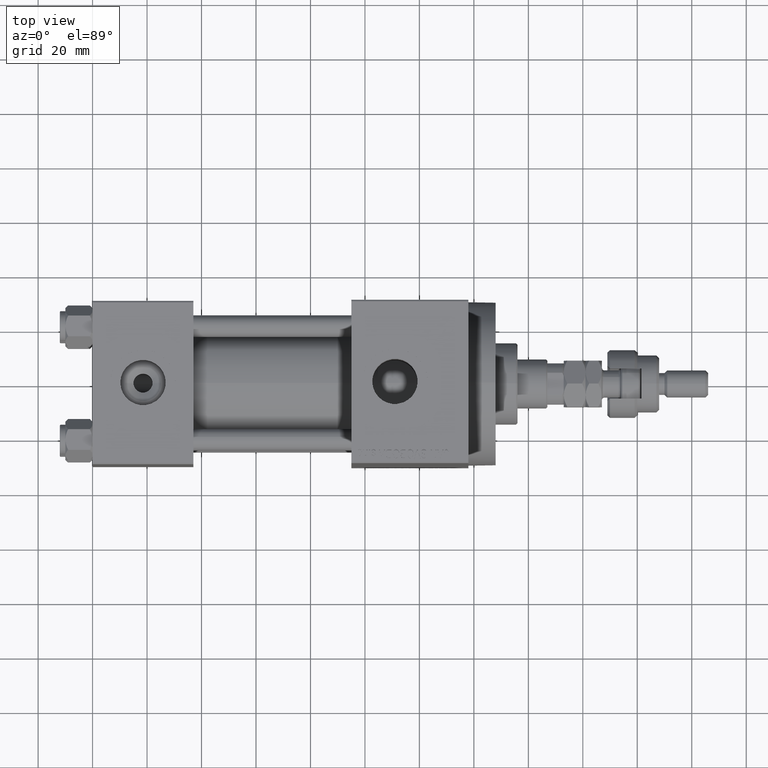
[diagram: clean part render]
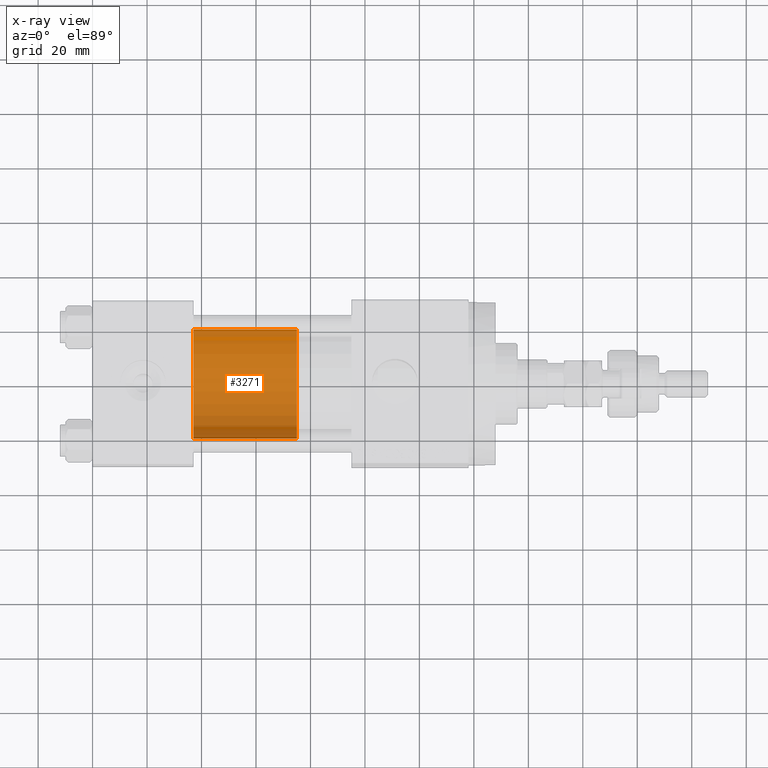
[diagram: x-ray — body ghosted, one internal face saturated and labeled with its STEP entity id]
A machine part, top view, then the same camera in x-ray: the body is ghosted and one INTERNAL B-rep face — a face not visible from any outside direction — is saturated and labeled: STEP entity #3271.
In plain terms, the highlighted cylindrical surface (partial cylindrical patch) has radius 20 mm, axis along (-1, 0, 0).
Its self-contained STEP definition (entity closure, byte-faithful):
#185 = VECTOR ( 'NONE', #47892, 1000.000000000000000 ) ;
#1469 = DIRECTION ( 'NONE',  ( -1.000000000000000000, 0.000000000000000000, 0.000000000000000000 ) ) ;
#1838 = CARTESIAN_POINT ( 'NONE',  ( -20.00000000000000000, 0.000000000000000000, 38.00000000000000000 ) ) ;
#3271 = ADVANCED_FACE ( 'NONE', ( #47256 ), #8543, .T. ) ;
#4223 = AXIS2_PLACEMENT_3D ( 'NONE', #45536, #25548, #30082 ) ;
#6424 = DIRECTION ( 'NONE',  ( -0.000000000000000000, -0.000000000000000000, -1.000000000000000000 ) ) ;
#6730 = CIRCLE ( 'NONE', #32597, 20.00000000000000000 ) ;
#7642 = EDGE_CURVE ( 'NONE', #39874, #18094, #6730, .T. ) ;
#8543 = CYLINDRICAL_SURFACE ( 'NONE', #42871, 20.00000000000000000 ) ;
#9425 = ORIENTED_EDGE ( 'NONE', *, *, #7642, .F. ) ;
#16143 = CARTESIAN_POINT ( 'NONE',  ( -20.00000000000000000, 0.000000000000000000, 0.000000000000000000 ) ) ;
#18094 = VERTEX_POINT ( 'NONE', #18307 ) ;
#18307 = CARTESIAN_POINT ( 'NONE',  ( -20.00000000000000000, 0.000000000000000000, 38.00000000000000000 ) ) ;
#20165 = CARTESIAN_POINT ( 'NONE',  ( 0.000000000000000000, 0.000000000000000000, 38.00000000000000000 ) ) ;
#22099 = LINE ( 'NONE', #38034, #23437 ) ;
#22209 = EDGE_CURVE ( 'NONE', #39874, #43421, #22099, .T. ) ;
#23082 = DIRECTION ( 'NONE',  ( 0.000000000000000000, 0.000000000000000000, 1.000000000000000000 ) ) ;
#23437 = VECTOR ( 'NONE', #6424, 1000.000000000000000 ) ;
#25548 = DIRECTION ( 'NONE',  ( 0.000000000000000000, 0.000000000000000000, 1.000000000000000000 ) ) ;
#26127 = EDGE_CURVE ( 'NONE', #18094, #40064, #32447, .T. ) ;
#27307 = EDGE_CURVE ( 'NONE', #43421, #40064, #44681, .T. ) ;
#30082 = DIRECTION ( 'NONE',  ( 1.000000000000000000, 0.000000000000000000, 0.000000000000000000 ) ) ;
#32208 = ORIENTED_EDGE ( 'NONE', *, *, #22209, .T. ) ;
#32447 = LINE ( 'NONE', #1838, #185 ) ;
#32597 = AXIS2_PLACEMENT_3D ( 'NONE', #46386, #23082, #34998 ) ;
#34152 = EDGE_LOOP ( 'NONE', ( #9425, #32208, #47423, #48355 ) ) ;
#34998 = DIRECTION ( 'NONE',  ( 1.000000000000000000, 0.000000000000000000, 0.000000000000000000 ) ) ;
#36147 = DIRECTION ( 'NONE',  ( -0.000000000000000000, -0.000000000000000000, -1.000000000000000000 ) ) ;
#38034 = CARTESIAN_POINT ( 'NONE',  ( 20.00000000000000000, 2.449293598294706513E-15, 38.00000000000000000 ) ) ;
#39874 = VERTEX_POINT ( 'NONE', #46051 ) ;
#40064 = VERTEX_POINT ( 'NONE', #16143 ) ;
#42871 = AXIS2_PLACEMENT_3D ( 'NONE', #20165, #36147, #1469 ) ;
#42938 = CARTESIAN_POINT ( 'NONE',  ( 20.00000000000000000, 2.449293598294706513E-15, 0.000000000000000000 ) ) ;
#43421 = VERTEX_POINT ( 'NONE', #42938 ) ;
#44681 = CIRCLE ( 'NONE', #4223, 20.00000000000000000 ) ;
#45536 = CARTESIAN_POINT ( 'NONE',  ( 0.000000000000000000, 0.000000000000000000, 0.000000000000000000 ) ) ;
#46051 = CARTESIAN_POINT ( 'NONE',  ( 20.00000000000000000, 2.449293598294706513E-15, 38.00000000000000000 ) ) ;
#46386 = CARTESIAN_POINT ( 'NONE',  ( 0.000000000000000000, 0.000000000000000000, 38.00000000000000000 ) ) ;
#47256 = FACE_OUTER_BOUND ( 'NONE', #34152, .T. ) ;
#47423 = ORIENTED_EDGE ( 'NONE', *, *, #27307, .T. ) ;
#47892 = DIRECTION ( 'NONE',  ( -0.000000000000000000, -0.000000000000000000, -1.000000000000000000 ) ) ;
#48355 = ORIENTED_EDGE ( 'NONE', *, *, #26127, .F. ) ;